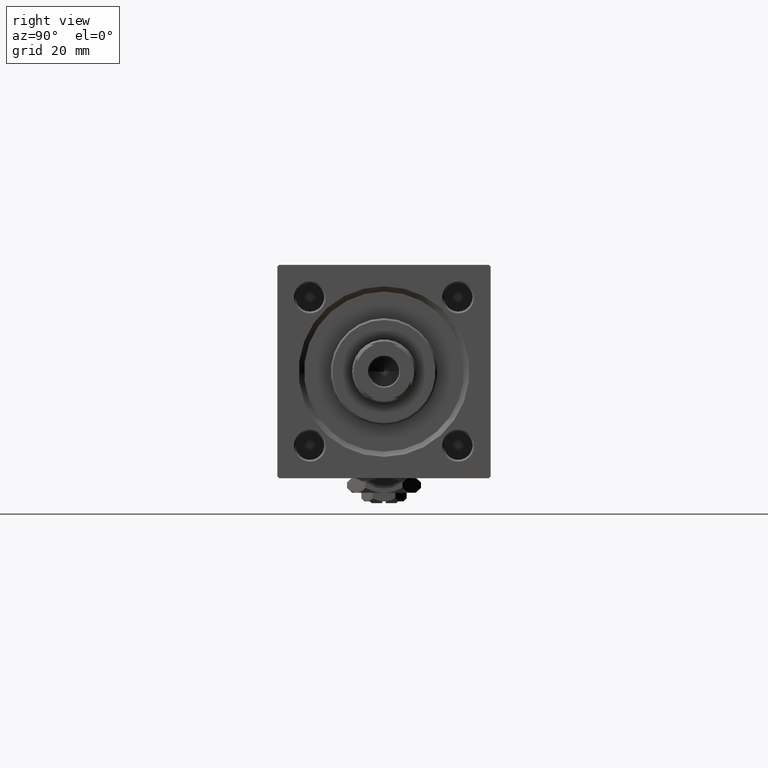
[diagram: clean part render]
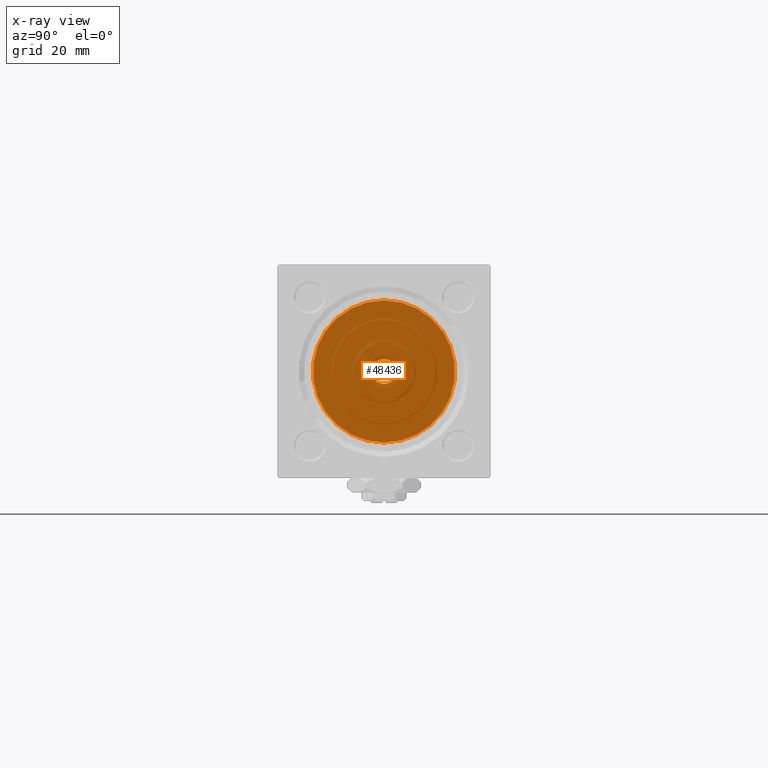
[diagram: x-ray — body ghosted, one internal face saturated and labeled with its STEP entity id]
A machine part, right view, then the same camera in x-ray: the body is ghosted and one INTERNAL B-rep face — a face not visible from any outside direction — is saturated and labeled: STEP entity #48436.
In plain terms, the highlighted planar face has unit normal (-1, 0, 0).
Its self-contained STEP definition (entity closure, byte-faithful):
#349 = DIRECTION ( 'NONE',  ( 0.000000000000000000, 0.000000000000000000, 1.000000000000000000 ) ) ;
#2863 = DIRECTION ( 'NONE',  ( 0.000000000000000000, 0.000000000000000000, -1.000000000000000000 ) ) ;
#7834 = CIRCLE ( 'NONE', #32297, 20.00000000000000000 ) ;
#7983 = CARTESIAN_POINT ( 'NONE',  ( 37.00000000000000711, 4.286263797015736595E-16, -3.500000000000000000 ) ) ;
#8844 = ORIENTED_EDGE ( 'NONE', *, *, #24356, .T. ) ;
#9557 = EDGE_LOOP ( 'NONE', ( #32511, #8844 ) ) ;
#10396 = AXIS2_PLACEMENT_3D ( 'NONE', #25373, #17965, #45991 ) ;
#11319 = CARTESIAN_POINT ( 'NONE',  ( 37.00000000000000000, -2.602085213965210642E-15, 0.000000000000000000 ) ) ;
#11714 = CIRCLE ( 'NONE', #13521, 3.500000000000000000 ) ;
#13521 = AXIS2_PLACEMENT_3D ( 'NONE', #20419, #36545, #349 ) ;
#13571 = CARTESIAN_POINT ( 'NONE',  ( 37.00000000000000000, -2.602085213965210642E-15, 20.00000000000000000 ) ) ;
#15726 = ORIENTED_EDGE ( 'NONE', *, *, #34399, .T. ) ;
#16036 = ORIENTED_EDGE ( 'NONE', *, *, #32243, .T. ) ;
#16678 = CARTESIAN_POINT ( 'NONE',  ( 37.00000000000000711, 0.000000000000000000, 3.500000000000000000 ) ) ;
#17965 = DIRECTION ( 'NONE',  ( -1.000000000000000000, 0.000000000000000000, -0.000000000000000000 ) ) ;
#18499 = DIRECTION ( 'NONE',  ( 1.000000000000000000, 0.000000000000000000, 0.000000000000000000 ) ) ;
#19333 = CIRCLE ( 'NONE', #33705, 3.500000000000000000 ) ;
#20419 = CARTESIAN_POINT ( 'NONE',  ( 37.00000000000000711, 0.000000000000000000, 0.000000000000000000 ) ) ;
#23927 = CARTESIAN_POINT ( 'NONE',  ( 37.00000000000000711, 0.000000000000000000, 0.000000000000000000 ) ) ;
#24356 = EDGE_CURVE ( 'NONE', #41985, #28333, #7834, .T. ) ;
#25373 = CARTESIAN_POINT ( 'NONE',  ( 37.00000000000000000, 0.000000000000000000, 0.000000000000000000 ) ) ;
#26636 = EDGE_LOOP ( 'NONE', ( #15726, #16036 ) ) ;
#26957 = DIRECTION ( 'NONE',  ( 0.000000000000000000, 0.000000000000000000, -1.000000000000000000 ) ) ;
#27864 = EDGE_CURVE ( 'NONE', #28333, #41985, #50160, .T. ) ;
#28333 = VERTEX_POINT ( 'NONE', #13571 ) ;
#29878 = FACE_BOUND ( 'NONE', #26636, .T. ) ;
#32243 = EDGE_CURVE ( 'NONE', #49260, #49385, #19333, .T. ) ;
#32297 = AXIS2_PLACEMENT_3D ( 'NONE', #11319, #44064, #2863 ) ;
#32511 = ORIENTED_EDGE ( 'NONE', *, *, #27864, .T. ) ;
#33705 = AXIS2_PLACEMENT_3D ( 'NONE', #23927, #51162, #43741 ) ;
#34120 = AXIS2_PLACEMENT_3D ( 'NONE', #42815, #18499, #26957 ) ;
#34399 = EDGE_CURVE ( 'NONE', #49385, #49260, #11714, .T. ) ;
#36545 = DIRECTION ( 'NONE',  ( -1.000000000000000000, 0.000000000000000000, -0.000000000000000000 ) ) ;
#37276 = PLANE ( 'NONE',  #10396 ) ;
#39737 = CARTESIAN_POINT ( 'NONE',  ( 37.00000000000000000, -1.527916156705046464E-16, -20.00000000000000000 ) ) ;
#41764 = FACE_OUTER_BOUND ( 'NONE', #9557, .T. ) ;
#41985 = VERTEX_POINT ( 'NONE', #39737 ) ;
#42815 = CARTESIAN_POINT ( 'NONE',  ( 37.00000000000000000, -2.602085213965210642E-15, 0.000000000000000000 ) ) ;
#43741 = DIRECTION ( 'NONE',  ( 0.000000000000000000, 0.000000000000000000, 1.000000000000000000 ) ) ;
#44064 = DIRECTION ( 'NONE',  ( 1.000000000000000000, 0.000000000000000000, 0.000000000000000000 ) ) ;
#45991 = DIRECTION ( 'NONE',  ( -0.000000000000000000, 0.000000000000000000, 1.000000000000000000 ) ) ;
#48436 = ADVANCED_FACE ( 'NONE', ( #29878, #41764 ), #37276, .F. ) ;
#49260 = VERTEX_POINT ( 'NONE', #7983 ) ;
#49385 = VERTEX_POINT ( 'NONE', #16678 ) ;
#50160 = CIRCLE ( 'NONE', #34120, 20.00000000000000000 ) ;
#51162 = DIRECTION ( 'NONE',  ( -1.000000000000000000, 0.000000000000000000, -0.000000000000000000 ) ) ;